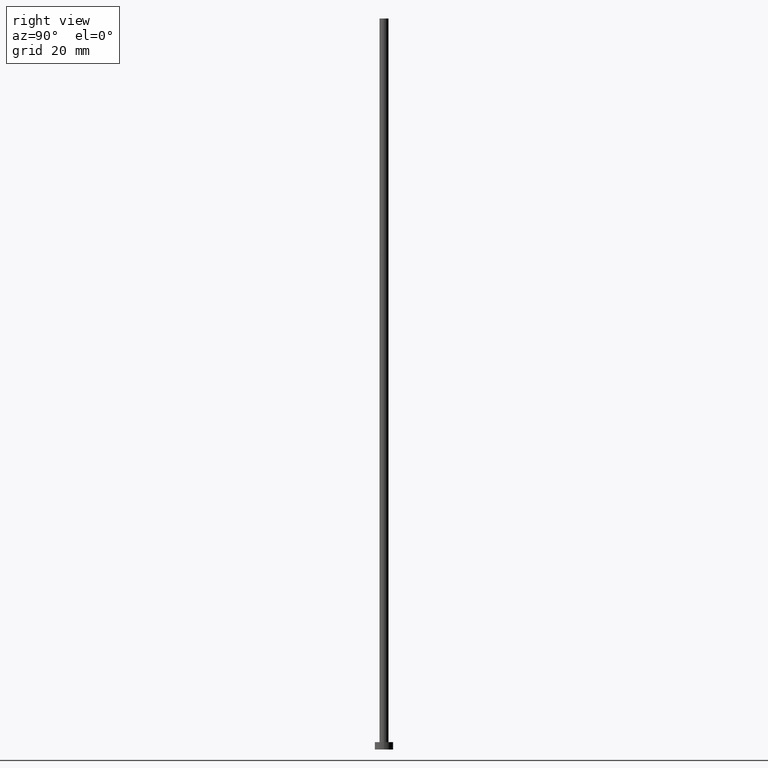
[diagram: clean part render]
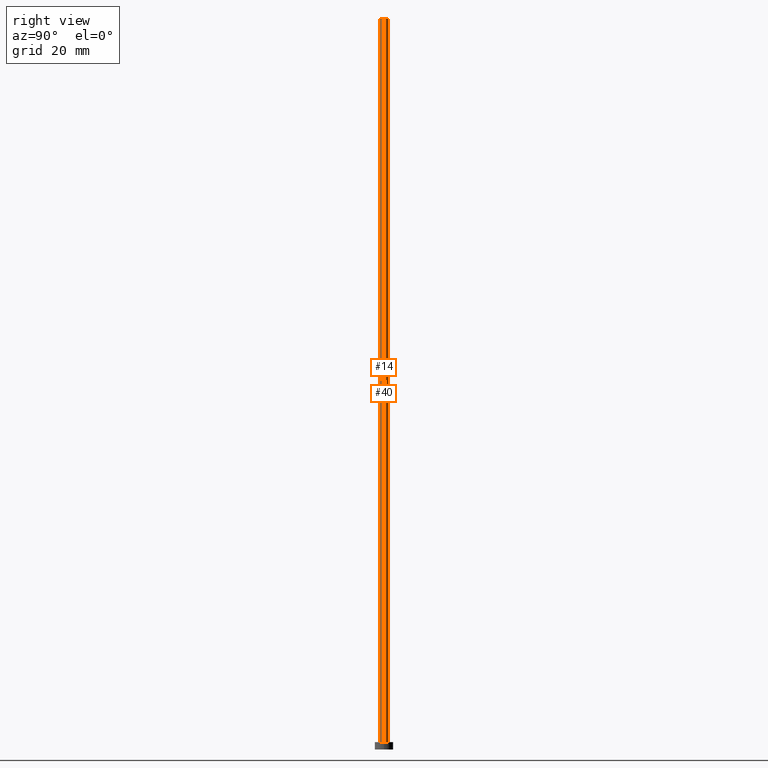
[diagram: same view with one multi-face feature highlighted, each face labeled with its STEP entity id]
A machine part, right view. The highlighted faces form ONE feature: a constant-radius fillet chain: 2 tangent blend faces with common blend radius 1.25 mm. The faces share edges in the B-rep.
Their STEP definitions:
[1] entity #40 (Cylinder):
#8 = AXIS2_PLACEMENT_3D ( 'NONE', #186, #21, #66 ) ;
#13 = VERTEX_POINT ( 'NONE', #102 ) ;
#16 = VERTEX_POINT ( 'NONE', #103 ) ;
#18 = DIRECTION ( 'NONE',  ( -1.000000000000000000, 0.000000000000000000, 0.000000000000000000 ) ) ;
#21 = DIRECTION ( 'NONE',  ( 0.000000000000000000, 0.000000000000000000, 1.000000000000000000 ) ) ;
#23 = CIRCLE ( 'NONE', #247, 1.250000000000000000 ) ;
#35 = ORIENTED_EDGE ( 'NONE', *, *, #98, .F. ) ;
#40 = ADVANCED_FACE ( 'NONE', ( #161 ), #118, .T. ) ;
#41 = DIRECTION ( 'NONE',  ( -0.000000000000000000, -0.000000000000000000, -1.000000000000000000 ) ) ;
#62 = CARTESIAN_POINT ( 'NONE',  ( 0.000000000000000000, 0.000000000000000000, 200.0000000000000000 ) ) ;
#65 = CARTESIAN_POINT ( 'NONE',  ( 1.250000000000000000, 1.530808498934191571E-16, 200.0000000000000000 ) ) ;
#66 = DIRECTION ( 'NONE',  ( 1.000000000000000000, 0.000000000000000000, 0.000000000000000000 ) ) ;
#68 = DIRECTION ( 'NONE',  ( -0.000000000000000000, -0.000000000000000000, -1.000000000000000000 ) ) ;
#70 = CARTESIAN_POINT ( 'NONE',  ( 1.250000000000000000, 1.530808498934191571E-16, 200.0000000000000000 ) ) ;
#85 = CARTESIAN_POINT ( 'NONE',  ( -1.250000000000000000, 0.000000000000000000, 200.0000000000000000 ) ) ;
#90 = EDGE_CURVE ( 'NONE', #156, #217, #180, .T. ) ;
#92 = AXIS2_PLACEMENT_3D ( 'NONE', #62, #202, #18 ) ;
#98 = EDGE_CURVE ( 'NONE', #217, #13, #249, .T. ) ;
#102 = CARTESIAN_POINT ( 'NONE',  ( -1.250000000000000000, 0.000000000000000000, 2.000000000000000000 ) ) ;
#103 = CARTESIAN_POINT ( 'NONE',  ( 1.250000000000000000, 1.530808498934191571E-16, 2.000000000000000000 ) ) ;
#112 = VECTOR ( 'NONE', #68, 1000.000000000000000 ) ;
#118 = CYLINDRICAL_SURFACE ( 'NONE', #92, 1.250000000000000000 ) ;
#150 = DIRECTION ( 'NONE',  ( 1.000000000000000000, 0.000000000000000000, 0.000000000000000000 ) ) ;
#154 = ORIENTED_EDGE ( 'NONE', *, *, #90, .F. ) ;
#156 = VERTEX_POINT ( 'NONE', #70 ) ;
#161 = FACE_OUTER_BOUND ( 'NONE', #238, .T. ) ;
#165 = LINE ( 'NONE', #65, #175 ) ;
#167 = EDGE_CURVE ( 'NONE', #16, #13, #23, .T. ) ;
#175 = VECTOR ( 'NONE', #41, 1000.000000000000000 ) ;
#180 = CIRCLE ( 'NONE', #8, 1.250000000000000000 ) ;
#183 = ORIENTED_EDGE ( 'NONE', *, *, #167, .T. ) ;
#186 = CARTESIAN_POINT ( 'NONE',  ( 0.000000000000000000, 0.000000000000000000, 200.0000000000000000 ) ) ;
#195 = CARTESIAN_POINT ( 'NONE',  ( 0.000000000000000000, 0.000000000000000000, 2.000000000000000000 ) ) ;
#199 = ORIENTED_EDGE ( 'NONE', *, *, #205, .T. ) ;
#202 = DIRECTION ( 'NONE',  ( -0.000000000000000000, -0.000000000000000000, -1.000000000000000000 ) ) ;
#205 = EDGE_CURVE ( 'NONE', #156, #16, #165, .T. ) ;
#217 = VERTEX_POINT ( 'NONE', #223 ) ;
#223 = CARTESIAN_POINT ( 'NONE',  ( -1.250000000000000000, 0.000000000000000000, 200.0000000000000000 ) ) ;
#237 = DIRECTION ( 'NONE',  ( 0.000000000000000000, 0.000000000000000000, 1.000000000000000000 ) ) ;
#238 = EDGE_LOOP ( 'NONE', ( #154, #199, #183, #35 ) ) ;
#247 = AXIS2_PLACEMENT_3D ( 'NONE', #195, #237, #150 ) ;
#249 = LINE ( 'NONE', #85, #112 ) ;
[2] entity #14 (Cylinder):
#4 = DIRECTION ( 'NONE',  ( -0.000000000000000000, -0.000000000000000000, -1.000000000000000000 ) ) ;
#13 = VERTEX_POINT ( 'NONE', #102 ) ;
#14 = ADVANCED_FACE ( 'NONE', ( #78 ), #244, .T. ) ;
#16 = VERTEX_POINT ( 'NONE', #103 ) ;
#19 = DIRECTION ( 'NONE',  ( 0.000000000000000000, 0.000000000000000000, 1.000000000000000000 ) ) ;
#41 = DIRECTION ( 'NONE',  ( -0.000000000000000000, -0.000000000000000000, -1.000000000000000000 ) ) ;
#44 = CIRCLE ( 'NONE', #212, 1.250000000000000000 ) ;
#45 = CIRCLE ( 'NONE', #77, 1.250000000000000000 ) ;
#52 = ORIENTED_EDGE ( 'NONE', *, *, #61, .F. ) ;
#61 = EDGE_CURVE ( 'NONE', #217, #156, #45, .T. ) ;
#65 = CARTESIAN_POINT ( 'NONE',  ( 1.250000000000000000, 1.530808498934191571E-16, 200.0000000000000000 ) ) ;
#68 = DIRECTION ( 'NONE',  ( -0.000000000000000000, -0.000000000000000000, -1.000000000000000000 ) ) ;
#70 = CARTESIAN_POINT ( 'NONE',  ( 1.250000000000000000, 1.530808498934191571E-16, 200.0000000000000000 ) ) ;
#77 = AXIS2_PLACEMENT_3D ( 'NONE', #178, #19, #162 ) ;
#78 = FACE_OUTER_BOUND ( 'NONE', #135, .T. ) ;
#85 = CARTESIAN_POINT ( 'NONE',  ( -1.250000000000000000, 0.000000000000000000, 200.0000000000000000 ) ) ;
#94 = ORIENTED_EDGE ( 'NONE', *, *, #98, .T. ) ;
#97 = CARTESIAN_POINT ( 'NONE',  ( 0.000000000000000000, 0.000000000000000000, 200.0000000000000000 ) ) ;
#98 = EDGE_CURVE ( 'NONE', #217, #13, #249, .T. ) ;
#102 = CARTESIAN_POINT ( 'NONE',  ( -1.250000000000000000, 0.000000000000000000, 2.000000000000000000 ) ) ;
#103 = CARTESIAN_POINT ( 'NONE',  ( 1.250000000000000000, 1.530808498934191571E-16, 2.000000000000000000 ) ) ;
#112 = VECTOR ( 'NONE', #68, 1000.000000000000000 ) ;
#135 = EDGE_LOOP ( 'NONE', ( #222, #52, #94, #254 ) ) ;
#156 = VERTEX_POINT ( 'NONE', #70 ) ;
#162 = DIRECTION ( 'NONE',  ( 1.000000000000000000, 0.000000000000000000, 0.000000000000000000 ) ) ;
#165 = LINE ( 'NONE', #65, #175 ) ;
#175 = VECTOR ( 'NONE', #41, 1000.000000000000000 ) ;
#178 = CARTESIAN_POINT ( 'NONE',  ( 0.000000000000000000, 0.000000000000000000, 200.0000000000000000 ) ) ;
#181 = DIRECTION ( 'NONE',  ( 1.000000000000000000, 0.000000000000000000, 0.000000000000000000 ) ) ;
#201 = CARTESIAN_POINT ( 'NONE',  ( 0.000000000000000000, 0.000000000000000000, 2.000000000000000000 ) ) ;
#204 = EDGE_CURVE ( 'NONE', #13, #16, #44, .T. ) ;
#205 = EDGE_CURVE ( 'NONE', #156, #16, #165, .T. ) ;
#206 = DIRECTION ( 'NONE',  ( -1.000000000000000000, 0.000000000000000000, 0.000000000000000000 ) ) ;
#212 = AXIS2_PLACEMENT_3D ( 'NONE', #201, #245, #181 ) ;
#217 = VERTEX_POINT ( 'NONE', #223 ) ;
#222 = ORIENTED_EDGE ( 'NONE', *, *, #205, .F. ) ;
#223 = CARTESIAN_POINT ( 'NONE',  ( -1.250000000000000000, 0.000000000000000000, 200.0000000000000000 ) ) ;
#239 = AXIS2_PLACEMENT_3D ( 'NONE', #97, #4, #206 ) ;
#244 = CYLINDRICAL_SURFACE ( 'NONE', #239, 1.250000000000000000 ) ;
#245 = DIRECTION ( 'NONE',  ( 0.000000000000000000, 0.000000000000000000, 1.000000000000000000 ) ) ;
#249 = LINE ( 'NONE', #85, #112 ) ;
#254 = ORIENTED_EDGE ( 'NONE', *, *, #204, .T. ) ;